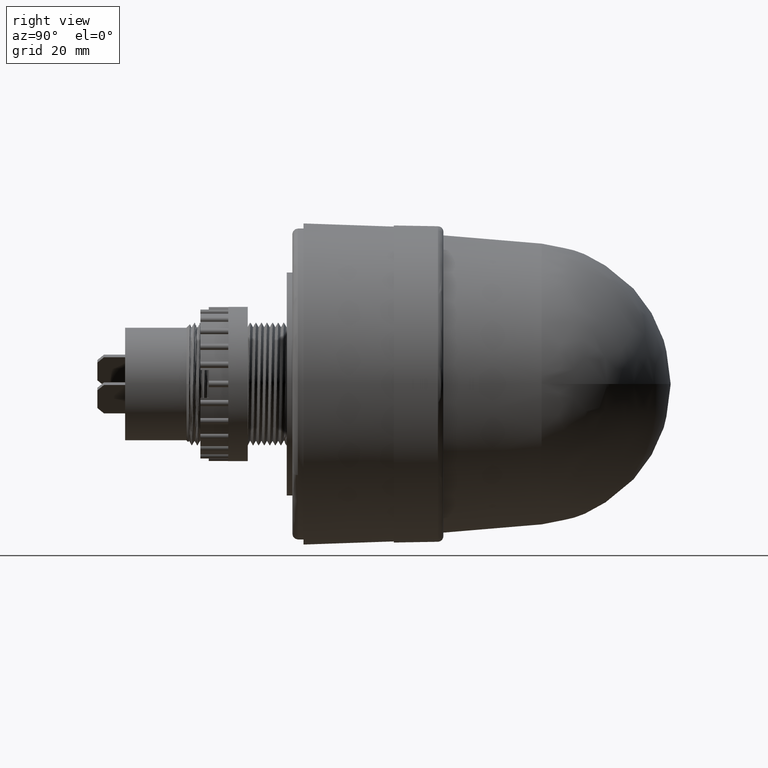
[diagram: clean part render]
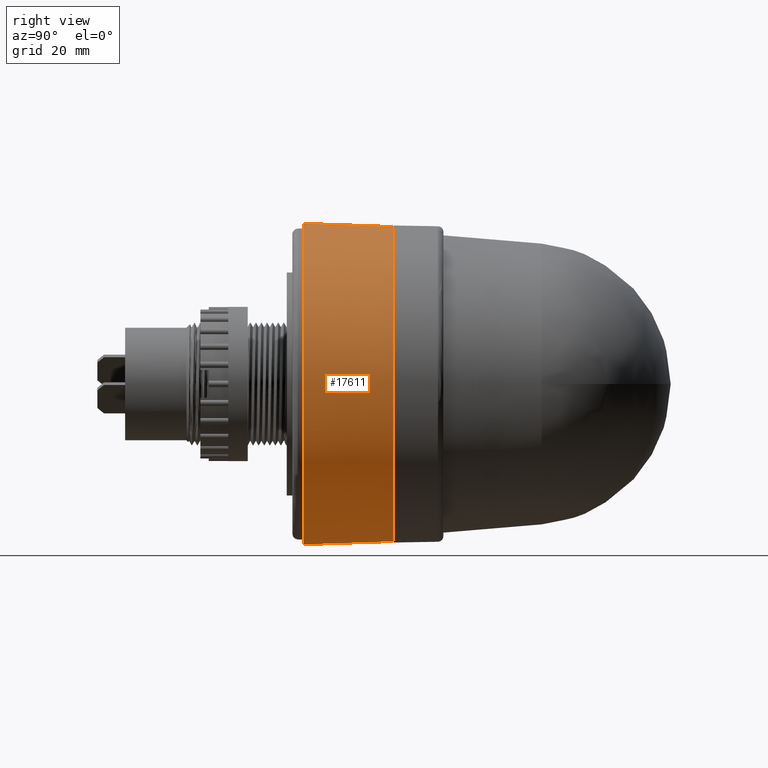
[diagram: same view with one face highlighted and labeled with its STEP entity id]
A machine part, right view. The second image highlights one B-rep face of the part: STEP entity #17611.
In plain terms, the highlighted conical surface has half-angle 2 deg.
Its self-contained STEP definition (entity closure, byte-faithful):
#56 = VERTEX_POINT ( 'NONE', #8883 ) ;
#796 = DIRECTION ( 'NONE',  ( -0.0000000000000000000, 1.000000000000000000, -0.0000000000000000000 ) ) ;
#1511 = ORIENTED_EDGE ( 'NONE', *, *, #4672, .F. ) ;
#3745 = AXIS2_PLACEMENT_3D ( 'NONE', #10977, #14393, #7460 ) ;
#4495 = LINE ( 'NONE', #18487, #22243 ) ;
#4672 = EDGE_CURVE ( 'NONE', #18071, #56, #22787, .T. ) ;
#4707 = EDGE_CURVE ( 'NONE', #19256, #56, #13400, .T. ) ;
#4713 = EDGE_CURVE ( 'NONE', #21530, #19256, #4495, .T. ) ;
#4776 = EDGE_CURVE ( 'NONE', #21530, #18071, #20023, .T. ) ;
#4880 = ORIENTED_EDGE ( 'NONE', *, *, #4707, .T. ) ;
#5312 = ORIENTED_EDGE ( 'NONE', *, *, #4713, .T. ) ;
#6301 = CARTESIAN_POINT ( 'NONE',  ( 1.389333658840265500E-016, -0.6377952755909945800, 1.134477026198552600 ) ) ;
#7460 = DIRECTION ( 'NONE',  ( 0.0000000000000000000, 0.0000000000000000000, -1.000000000000000000 ) ) ;
#7850 = DIRECTION ( 'NONE',  ( 4.273955687975430200E-018, -0.9993908270204877600, 0.03489949666263876500 ) ) ;
#8820 = CONICAL_SURFACE ( 'NONE', #3745, 1.134477026198552600, 0.03490658500000008700 ) ;
#8883 = CARTESIAN_POINT ( 'NONE',  ( 0.0000000000000000000, -0.6377952755909945800, -1.134477026198552600 ) ) ;
#9245 = VECTOR ( 'NONE', #16550, 39.37007874015748100 ) ;
#9660 = DIRECTION ( 'NONE',  ( -0.0000000000000000000, 1.000000000000000000, -0.0000000000000000000 ) ) ;
#10977 = CARTESIAN_POINT ( 'NONE',  ( 0.0000000000000000000, -0.6377952755909970200, 0.0000000000000000000 ) ) ;
#11581 = CARTESIAN_POINT ( 'NONE',  ( 0.0000000000000000000, 4.444716685691756400E-013, 0.0000000000000000000 ) ) ;
#13128 = CARTESIAN_POINT ( 'NONE',  ( 0.0000000000000000000, -0.6377952755909970200, -1.134477026198552600 ) ) ;
#13359 = DIRECTION ( 'NONE',  ( 0.0000000000000000000, 0.0000000000000000000, -1.000000000000000000 ) ) ;
#13400 = CIRCLE ( 'NONE', #21285, 1.134477026198552600 ) ;
#13755 = CARTESIAN_POINT ( 'NONE',  ( 1.375695807300219300E-016, 4.444716685691756400E-013, 1.112204724422168700 ) ) ;
#14393 = DIRECTION ( 'NONE',  ( 0.0000000000000000000, -1.000000000000000000, 0.0000000000000000000 ) ) ;
#15566 = CARTESIAN_POINT ( 'NONE',  ( 0.0000000000000000000, 4.444716685691756400E-013, -1.112204724422168700 ) ) ;
#16550 = DIRECTION ( 'NONE',  ( 0.0000000000000000000, -0.9993908270204877600, -0.03489949666263876500 ) ) ;
#17598 = EDGE_LOOP ( 'NONE', ( #22831, #5312, #4880, #1511 ) ) ;
#17611 = ADVANCED_FACE ( 'NONE', ( #20449 ), #8820, .T. ) ;
#18071 = VERTEX_POINT ( 'NONE', #15566 ) ;
#18487 = CARTESIAN_POINT ( 'NONE',  ( 1.389333658840265500E-016, -0.6377952755909970200, 1.134477026198552600 ) ) ;
#19256 = VERTEX_POINT ( 'NONE', #6301 ) ;
#20023 = CIRCLE ( 'NONE', #21155, 1.112204724422168700 ) ;
#20233 = CARTESIAN_POINT ( 'NONE',  ( 0.0000000000000000000, -0.6377952755909945800, 0.0000000000000000000 ) ) ;
#20449 = FACE_OUTER_BOUND ( 'NONE', #17598, .T. ) ;
#21155 = AXIS2_PLACEMENT_3D ( 'NONE', #11581, #796, #13359 ) ;
#21285 = AXIS2_PLACEMENT_3D ( 'NONE', #20233, #9660, #22019 ) ;
#21530 = VERTEX_POINT ( 'NONE', #13755 ) ;
#22019 = DIRECTION ( 'NONE',  ( 0.0000000000000000000, 0.0000000000000000000, -1.000000000000000000 ) ) ;
#22243 = VECTOR ( 'NONE', #7850, 39.37007874015748100 ) ;
#22787 = LINE ( 'NONE', #13128, #9245 ) ;
#22831 = ORIENTED_EDGE ( 'NONE', *, *, #4776, .F. ) ;